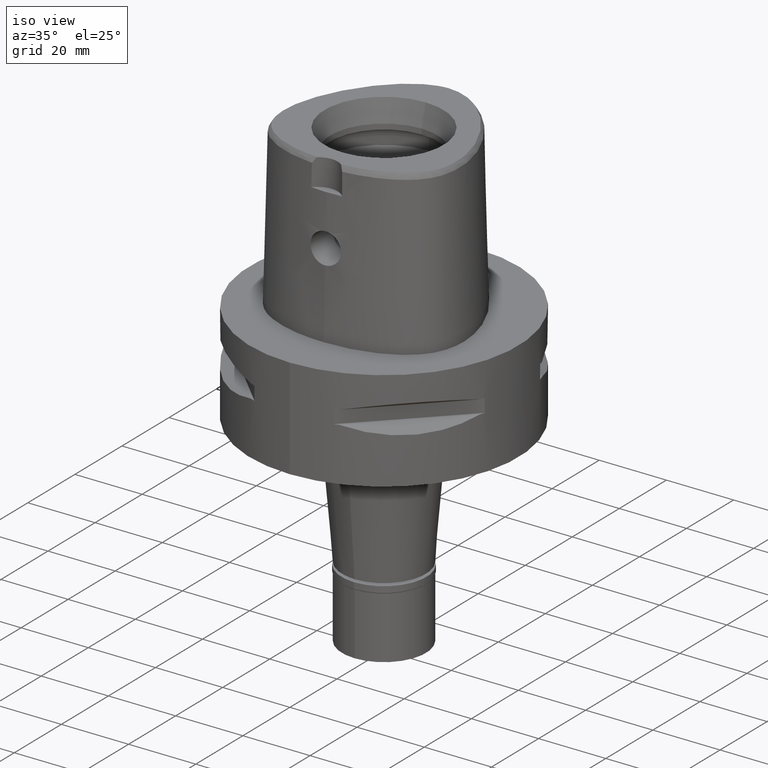
[diagram: clean part render]
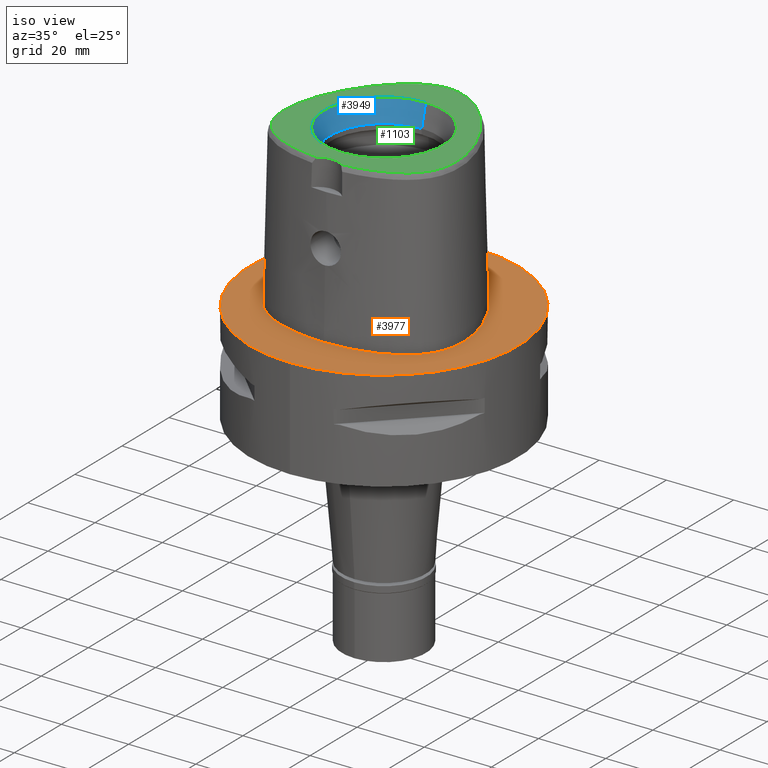
[diagram: same view with three faces highlighted in distinct colors, each labeled with its STEP entity id]
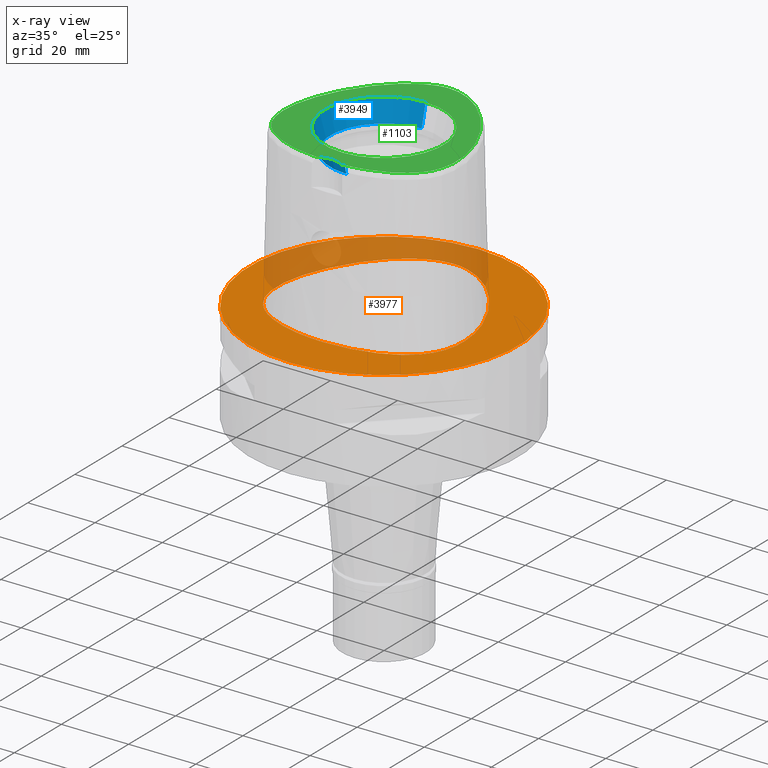
[diagram: x-ray of the same camera — body ghosted, the three highlighted faces saturated]
A machine part, iso view with three faces highlighted in distinct colors.
The next image is the same camera in x-ray (body ghosted, the three faces saturated) — at least one of them is partly hidden behind the body in this view.
Their STEP definitions:

[orange] entity #3977 — the highlighted planar face has unit normal (0, 0, -1).
#49 = CARTESIAN_POINT ( 'NONE',  ( -26.34912733315863420, -13.39455076413058698, 1.701754668876221538E-06 ) ) ;
#179 = CARTESIAN_POINT ( 'NONE',  ( 0.0000000000000000000, 1.275959500031999927E-14, 0.0000000000000000000 ) ) ;
#265 = AXIS2_PLACEMENT_3D ( 'NONE', #2224, #3396, #901 ) ;
#288 = AXIS2_PLACEMENT_3D ( 'NONE', #179, #3020, #2603 ) ;
#323 = CARTESIAN_POINT ( 'NONE',  ( 27.68378750939452360, -8.751933590071784508, 1.165658668005574439E-06 ) ) ;
#376 = CARTESIAN_POINT ( 'NONE',  ( 25.63812387330620268, -14.80217771977588015, 1.165658668005574439E-06 ) ) ;
#377 = AXIS2_PLACEMENT_3D ( 'NONE', #1760, #474, #1663 ) ;
#396 = CARTESIAN_POINT ( 'NONE',  ( 3.149084868216509125, 29.34015622135638068, 1.165658668005574439E-06 ) ) ;
#474 = DIRECTION ( 'NONE',  ( 0.0000000000000000000, 0.0000000000000000000, -1.000000000000000000 ) ) ;
#651 = EDGE_CURVE ( 'NONE', #4049, #3646, #3774, .T. ) ;
#744 = CARTESIAN_POINT ( 'NONE',  ( 24.77458491141283758, -16.12173826395166998, 1.165658668005574439E-06 ) ) ;
#800 = CARTESIAN_POINT ( 'NONE',  ( -22.33885462068464633, 12.89734372864185730, 1.701754668876221538E-06 ) ) ;
#819 = CARTESIAN_POINT ( 'NONE',  ( 4.148697022416999716E-11, 29.57499999998999840, 1.067294401005999885E-13 ) ) ;
#822 = CARTESIAN_POINT ( 'NONE',  ( 4.148697022416999716E-11, 29.57499999998999840, 1.067294401005999885E-13 ) ) ;
#901 = DIRECTION ( 'NONE',  ( 0.0000000000000000000, -1.000000000000000000, 0.0000000000000000000 ) ) ;
#1166 = CARTESIAN_POINT ( 'NONE',  ( -11.74025984363835562, -24.13566402136991584, 1.701754668876221538E-06 ) ) ;
#1188 = CARTESIAN_POINT ( 'NONE',  ( 6.262496933459375192, 28.35083005113985521, 1.165658668005574439E-06 ) ) ;
#1217 = CARTESIAN_POINT ( 'NONE',  ( -1.049694954984246476, 29.57499995746253774, 1.701754668876221538E-06 ) ) ;
#1238 = CARTESIAN_POINT ( 'NONE',  ( -27.68378749603251876, -8.751933588380621742, 1.701754668876221538E-06 ) ) ;
#1261 = CARTESIAN_POINT ( 'NONE',  ( -15.29776364736192207, -22.96525386653354062, 1.701754668876221538E-06 ) ) ;
#1389 = CARTESIAN_POINT ( 'NONE',  ( -1.821165774657999902E-11, -25.57499999999999929, 1.131317262092999931E-13 ) ) ;
#1426 = B_SPLINE_CURVE_WITH_KNOTS ( 'NONE', 3,
 ( #822, #1217, #4024, #2857, #4828, #4368, #5127, #800, #2354, #2001, #1660, #1586, #1238, #4784, #49, #3253, #4806, #2055, #2379, #3591, #1261, #1166, #1954, #4438, #3182 ),
 .UNSPECIFIED., .F., .F.,
 ( 4, 1, 1, 1, 1, 1, 1, 1, 1, 1, 1, 1, 1, 1, 1, 1, 1, 1, 1, 1, 1, 1, 4 ),
 ( 0.0000000000000000000, 0.04166666666717999679, 0.08333333333381000296, 0.1250000000004000134, 0.1666666666671000052, 0.2500000000002999823, 0.3333333333335999904, 0.4166666666668999985, 0.4583333333335000148, 0.5000000000001000311, 0.5416666666667999674, 0.5833333333333999837, 0.6250000000000000000, 0.6458333333333000637, 0.6666666666667000474, 0.6875000000000000000, 0.7083333333333000637, 0.7499999999999000799, 0.7916666666666000163, 0.8333333333332000326, 0.8749999999998000488, 0.9166666666664999852, 1.000000000000000000 ),
 .UNSPECIFIED. ) ;
#1472 = EDGE_CURVE ( 'NONE', #3037, #1984, #1426, .T. ) ;
#1563 = CARTESIAN_POINT ( 'NONE',  ( 22.33885463233493951, 12.89734373536445844, 1.165658668005574439E-06 ) ) ;
#1584 = CARTESIAN_POINT ( 'NONE',  ( 27.53737508972407255, -1.765625004409581589, 1.165658668005574439E-06 ) ) ;
#1586 = CARTESIAN_POINT ( 'NONE',  ( -27.85475985478740668, -5.337968751070182094, 1.701754668876221538E-06 ) ) ;
#1637 = ORIENTED_EDGE ( 'NONE', *, *, #1472, .F. ) ;
#1660 = CARTESIAN_POINT ( 'NONE',  ( -27.53737507645010396, -1.765625006437313127, 1.701754668876221538E-06 ) ) ;
#1663 = DIRECTION ( 'NONE',  ( 0.0000000000000000000, -1.000000000000000000, 0.0000000000000000000 ) ) ;
#1760 = CARTESIAN_POINT ( 'NONE',  ( 0.0000000000000000000, 1.224646799146999965E-14, 0.0000000000000000000 ) ) ;
#1923 = CARTESIAN_POINT ( 'NONE',  ( 6.691850459819625563, -25.24546872104254192, 1.165658668005574439E-06 ) ) ;
#1954 = CARTESIAN_POINT ( 'NONE',  ( -6.691850457977461808, -25.24546870772859819, 1.701754668876221538E-06 ) ) ;
#1978 = CARTESIAN_POINT ( 'NONE',  ( 26.34912734546020019, -13.39455076952570600, 1.165658668005574439E-06 ) ) ;
#1984 = VERTEX_POINT ( 'NONE', #1389 ) ;
#2001 = CARTESIAN_POINT ( 'NONE',  ( -26.77222810152197852, 1.900468739064591794, 1.701754668876221538E-06 ) ) ;
#2055 = CARTESIAN_POINT ( 'NONE',  ( -23.43253025682038171, -17.76420407183780625, 1.701754668876221538E-06 ) ) ;
#2080 = PLANE ( 'NONE',  #377 ) ;
#2224 = CARTESIAN_POINT ( 'NONE',  ( 0.0000000000000000000, 1.275959500031999927E-14, 0.0000000000000000000 ) ) ;
#2352 = CARTESIAN_POINT ( 'NONE',  ( 17.75297948908530898, 19.52218748138929172, 1.165658668005574439E-06 ) ) ;
#2354 = CARTESIAN_POINT ( 'NONE',  ( -25.20914246033307649, 6.827421858926171261, 1.701754668876221538E-06 ) ) ;
#2379 = CARTESIAN_POINT ( 'NONE',  ( -21.42129056778538043, -19.59889645033743122, 1.701754668876221538E-06 ) ) ;
#2402 = CARTESIAN_POINT ( 'NONE',  ( 25.20914247278295761, 6.827421863989363793, 1.165658668005574439E-06 ) ) ;
#2423 = CARTESIAN_POINT ( 'NONE',  ( 1.049694955991578693, 29.57499997086068433, 1.165658668005574439E-06 ) ) ;
#2603 = DIRECTION ( 'NONE',  ( 0.0000000000000000000, 1.000000000000000000, 0.0000000000000000000 ) ) ;
#2669 = B_SPLINE_CURVE_WITH_KNOTS ( 'NONE', 3,
 ( #3952, #2710, #1923, #2739, #4708, #3929, #3156, #4290, #744, #376, #1978, #3569, #323, #5145, #1584, #5123, #2402, #1563, #2352, #3995, #3206, #1188, #396, #2423, #819 ),
 .UNSPECIFIED., .F., .F.,
 ( 4, 1, 1, 1, 1, 1, 1, 1, 1, 1, 1, 1, 1, 1, 1, 1, 1, 1, 1, 1, 1, 1, 4 ),
 ( 0.0000000000000000000, 0.08333333333347001104, 0.1250000000001000033, 0.1666666666668000230, 0.2083333333334000115, 0.2500000000000000000, 0.2916666666666999919, 0.3125000000000000000, 0.3333333333333000081, 0.3541666666666999919, 0.3750000000000000000, 0.4166666666666000163, 0.4583333333332000326, 0.4999999999998999689, 0.5416666666666000163, 0.5833333333331000015, 0.6666666666664999852, 0.7499999999997000177, 0.8333333333329999704, 0.8749999999995999866, 0.9166666666663000340, 0.9583333333329000503, 1.000000000000000000 ),
 .UNSPECIFIED. ) ;
#2710 = CARTESIAN_POINT ( 'NONE',  ( 2.676740183930187200, -25.57499997085983523, 1.165658668005574439E-06 ) ) ;
#2739 = CARTESIAN_POINT ( 'NONE',  ( 11.74025984713455095, -24.13566403432510299, 1.165658668005574439E-06 ) ) ;
#2857 = CARTESIAN_POINT ( 'NONE',  ( -6.262496928246712891, 28.35083003872227891, 1.701754668876221538E-06 ) ) ;
#2860 = FACE_OUTER_BOUND ( 'NONE', #4467, .T. ) ;
#3020 = DIRECTION ( 'NONE',  ( 0.0000000000000000000, 0.0000000000000000000, -1.000000000000000000 ) ) ;
#3037 = VERTEX_POINT ( 'NONE', #3463 ) ;
#3156 = CARTESIAN_POINT ( 'NONE',  ( 21.42129057593177421, -19.59889646106317329, 1.165658668005574439E-06 ) ) ;
#3158 = EDGE_LOOP ( 'NONE', ( #1637, #4097 ) ) ;
#3182 = CARTESIAN_POINT ( 'NONE',  ( -1.821165774657999902E-11, -25.57499999999999929, 1.131317262092999931E-13 ) ) ;
#3206 = CARTESIAN_POINT ( 'NONE',  ( 9.304563391366016845, 26.79191403755841705, 1.165658668005574439E-06 ) ) ;
#3253 = CARTESIAN_POINT ( 'NONE',  ( -25.63812386168063640, -14.80217771306819863, 1.701754668876221538E-06 ) ) ;
#3396 = DIRECTION ( 'NONE',  ( 0.0000000000000000000, 0.0000000000000000000, -1.000000000000000000 ) ) ;
#3463 = CARTESIAN_POINT ( 'NONE',  ( 4.148697022416999716E-11, 29.57499999998999840, 1.067294401005999885E-13 ) ) ;
#3569 = CARTESIAN_POINT ( 'NONE',  ( 27.10051714556994185, -11.41106444511870421, 1.165658668005574439E-06 ) ) ;
#3591 = CARTESIAN_POINT ( 'NONE',  ( -18.55019647042514563, -21.45394527502291027, 1.701754668876221538E-06 ) ) ;
#3646 = VERTEX_POINT ( 'NONE', #4760 ) ;
#3774 = CIRCLE ( 'NONE', #265, 40.00000000000000000 ) ;
#3870 = ORIENTED_EDGE ( 'NONE', *, *, #651, .F. ) ;
#3891 = ORIENTED_EDGE ( 'NONE', *, *, #4156, .F. ) ;
#3929 = CARTESIAN_POINT ( 'NONE',  ( 18.55019647685577056, -21.45394528682550828, 1.165658668005574439E-06 ) ) ;
#3952 = CARTESIAN_POINT ( 'NONE',  ( -1.821165774657999902E-11, -25.57499999999999929, 1.131317262092999931E-13 ) ) ;
#3977 = ADVANCED_FACE ( 'NONE', ( #2860, #4442 ), #2080, .F. ) ;
#3995 = CARTESIAN_POINT ( 'NONE',  ( 13.21796078620111459, 24.04386716541122127, 1.165658668005574439E-06 ) ) ;
#4024 = CARTESIAN_POINT ( 'NONE',  ( -3.149084865322356652, 29.34015620817619308, 1.701754668876221538E-06 ) ) ;
#4049 = VERTEX_POINT ( 'NONE', #4466 ) ;
#4097 = ORIENTED_EDGE ( 'NONE', *, *, #4385, .F. ) ;
#4156 = EDGE_CURVE ( 'NONE', #3646, #4049, #4710, .T. ) ;
#4290 = CARTESIAN_POINT ( 'NONE',  ( 23.43253026647482073, -17.76420408120461047, 1.165658668005574439E-06 ) ) ;
#4368 = CARTESIAN_POINT ( 'NONE',  ( -13.21796077734287955, 24.04386715526105789, 1.701754668876221538E-06 ) ) ;
#4385 = EDGE_CURVE ( 'NONE', #1984, #3037, #2669, .T. ) ;
#4438 = CARTESIAN_POINT ( 'NONE',  ( -2.676740183213321078, -25.57499995745941845, 1.701754668876221538E-06 ) ) ;
#4442 = FACE_BOUND ( 'NONE', #3158, .T. ) ;
#4466 = CARTESIAN_POINT ( 'NONE',  ( 0.0000000000000000000, -40.00000000000000000, 0.0000000000000000000 ) ) ;
#4467 = EDGE_LOOP ( 'NONE', ( #3891, #3870 ) ) ;
#4708 = CARTESIAN_POINT ( 'NONE',  ( 15.29776365224693890, -22.96525387904253890, 1.165658668005574439E-06 ) ) ;
#4710 = CIRCLE ( 'NONE', #288, 40.00000000000000000 ) ;
#4760 = CARTESIAN_POINT ( 'NONE',  ( 0.0000000000000000000, 40.00000000000000000, 0.0000000000000000000 ) ) ;
#4784 = CARTESIAN_POINT ( 'NONE',  ( -27.10051713263586848, -11.41106444143270338, 1.701754668876221538E-06 ) ) ;
#4806 = CARTESIAN_POINT ( 'NONE',  ( -24.77458490059915519, -16.12173825601508170, 1.701754668876221538E-06 ) ) ;
#4828 = CARTESIAN_POINT ( 'NONE',  ( -9.304563384354768374, 26.79191402609218287, 1.701754668876221538E-06 ) ) ;
#5123 = CARTESIAN_POINT ( 'NONE',  ( 26.77222811450192097, 1.900468742509929365, 1.165658668005574439E-06 ) ) ;
#5127 = CARTESIAN_POINT ( 'NONE',  ( -17.75297947868810766, 19.52218747283760436, 1.701754668876221538E-06 ) ) ;
#5145 = CARTESIAN_POINT ( 'NONE',  ( 27.85475986822256900, -5.337968750732916767, 1.165658668005574439E-06 ) ) ;

[blue] entity #3949 — the highlighted conical surface has half-angle 15 deg.
#100 = CARTESIAN_POINT ( 'NONE',  ( 0.0000000000000000000, 17.71487483155999954, 48.00000000000000000 ) ) ;
#211 = EDGE_LOOP ( 'NONE', ( #940, #3659, #450, #2231 ) ) ;
#352 = DIRECTION ( 'NONE',  ( 0.0000000000000000000, 1.000000000000000000, 0.0000000000000000000 ) ) ;
#449 = AXIS2_PLACEMENT_3D ( 'NONE', #2840, #4516, #947 ) ;
#450 = ORIENTED_EDGE ( 'NONE', *, *, #1044, .T. ) ;
#940 = ORIENTED_EDGE ( 'NONE', *, *, #2509, .F. ) ;
#947 = DIRECTION ( 'NONE',  ( 0.0000000000000000000, 1.000000000000000000, 0.0000000000000000000 ) ) ;
#1044 = EDGE_CURVE ( 'NONE', #1933, #3937, #2250, .T. ) ;
#1190 = CARTESIAN_POINT ( 'NONE',  ( 0.0000000000000000000, 0.0000000000000000000, 41.60000000000000142 ) ) ;
#1337 = CARTESIAN_POINT ( 'NONE',  ( 0.0000000000000000000, -16.00000000000000000, 41.60000000000000142 ) ) ;
#1465 = CONICAL_SURFACE ( 'NONE', #449, 16.85743741578000154, 0.2617993877991000029 ) ;
#1527 = EDGE_CURVE ( 'NONE', #1933, #2637, #3034, .T. ) ;
#1539 = VECTOR ( 'NONE', #3478, 1000.000000000000000 ) ;
#1552 = AXIS2_PLACEMENT_3D ( 'NONE', #2382, #3525, #352 ) ;
#1626 = VECTOR ( 'NONE', #4486, 1000.000000000000000 ) ;
#1661 = LINE ( 'NONE', #2480, #1626 ) ;
#1825 = CARTESIAN_POINT ( 'NONE',  ( 0.0000000000000000000, -17.71487483155999954, 48.00000000000000000 ) ) ;
#1933 = VERTEX_POINT ( 'NONE', #4591 ) ;
#2231 = ORIENTED_EDGE ( 'NONE', *, *, #3651, .T. ) ;
#2250 = LINE ( 'NONE', #3892, #1539 ) ;
#2382 = CARTESIAN_POINT ( 'NONE',  ( 0.0000000000000000000, 0.0000000000000000000, 48.00000000000000000 ) ) ;
#2480 = CARTESIAN_POINT ( 'NONE',  ( 0.0000000000000000000, -16.00000000000000000, 41.60000000000000142 ) ) ;
#2509 = EDGE_CURVE ( 'NONE', #2637, #3335, #1661, .T. ) ;
#2637 = VERTEX_POINT ( 'NONE', #1337 ) ;
#2788 = DIRECTION ( 'NONE',  ( 0.0000000000000000000, 1.000000000000000000, 0.0000000000000000000 ) ) ;
#2840 = CARTESIAN_POINT ( 'NONE',  ( 0.0000000000000000000, 0.0000000000000000000, 44.79999999999999716 ) ) ;
#2937 = FACE_OUTER_BOUND ( 'NONE', #211, .T. ) ;
#3034 = CIRCLE ( 'NONE', #4602, 16.00000000000000000 ) ;
#3335 = VERTEX_POINT ( 'NONE', #1825 ) ;
#3478 = DIRECTION ( 'NONE',  ( 0.0000000000000000000, 0.2588190451025869088, 0.9659258262890505486 ) ) ;
#3525 = DIRECTION ( 'NONE',  ( 0.0000000000000000000, 0.0000000000000000000, 1.000000000000000000 ) ) ;
#3571 = DIRECTION ( 'NONE',  ( 0.0000000000000000000, 0.0000000000000000000, 1.000000000000000000 ) ) ;
#3651 = EDGE_CURVE ( 'NONE', #3937, #3335, #3789, .T. ) ;
#3659 = ORIENTED_EDGE ( 'NONE', *, *, #1527, .F. ) ;
#3789 = CIRCLE ( 'NONE', #1552, 17.71487483155999954 ) ;
#3892 = CARTESIAN_POINT ( 'NONE',  ( 0.0000000000000000000, 16.00000000000000000, 41.60000000000000142 ) ) ;
#3937 = VERTEX_POINT ( 'NONE', #100 ) ;
#3949 = ADVANCED_FACE ( 'NONE', ( #2937 ), #1465, .F. ) ;
#4486 = DIRECTION ( 'NONE',  ( 0.0000000000000000000, -0.2588190451025869088, 0.9659258262890505486 ) ) ;
#4516 = DIRECTION ( 'NONE',  ( 0.0000000000000000000, 0.0000000000000000000, 1.000000000000000000 ) ) ;
#4591 = CARTESIAN_POINT ( 'NONE',  ( 0.0000000000000000000, 16.00000000000000000, 41.60000000000000142 ) ) ;
#4602 = AXIS2_PLACEMENT_3D ( 'NONE', #1190, #3571, #2788 ) ;

[green] entity #1103 — the highlighted planar face has unit normal (0, 0, 1).
#6 = CARTESIAN_POINT ( 'NONE',  ( -21.17991838302293317, -17.09989881138198697, 47.99999999999720046 ) ) ;
#10 = CARTESIAN_POINT ( 'NONE',  ( 16.58774972841499107, 17.44522137221790459, 48.00000000001266898 ) ) ;
#17 = AXIS2_PLACEMENT_3D ( 'NONE', #2148, #144, #4980 ) ;
#34 = CARTESIAN_POINT ( 'NONE',  ( -8.052265342579660867, 25.13651235630354819, 47.99999999999929656 ) ) ;
#38 = CARTESIAN_POINT ( 'NONE',  ( 18.06021793802549524, -19.35923481219389330, 47.99999999999899103 ) ) ;
#59 = CARTESIAN_POINT ( 'NONE',  ( 21.18145661121161538, -17.09850743469760204, 48.00000000000048317 ) ) ;
#78 = CARTESIAN_POINT ( 'NONE',  ( -2.895995683504697826, 27.25632069045617101, 47.99999999999904077 ) ) ;
#81 = CARTESIAN_POINT ( 'NONE',  ( 15.47311546589589426, 18.77848662925027412, 48.00000000000511591 ) ) ;
#95 = ORIENTED_EDGE ( 'NONE', *, *, #3651, .F. ) ;
#100 = CARTESIAN_POINT ( 'NONE',  ( 0.0000000000000000000, 17.71487483155999954, 48.00000000000000000 ) ) ;
#144 = DIRECTION ( 'NONE',  ( 0.0000000000000000000, 0.0000000000000000000, 1.000000000000000000 ) ) ;
#310 = CARTESIAN_POINT ( 'NONE',  ( -25.33661149944552804, -10.07113708571539057, 48.00000000000500222 ) ) ;
#335 = CARTESIAN_POINT ( 'NONE',  ( -12.15213727002930888, -21.88854758767285702, 48.00000000000326139 ) ) ;
#352 = DIRECTION ( 'NONE',  ( 0.0000000000000000000, 1.000000000000000000, 0.0000000000000000000 ) ) ;
#359 = CARTESIAN_POINT ( 'NONE',  ( -24.78798701905643398, 1.406367702425763477, 47.99999999999251088 ) ) ;
#387 = CARTESIAN_POINT ( 'NONE',  ( -20.74831938584492974, 11.24670202905030081, 47.99999999999530331 ) ) ;
#389 = CARTESIAN_POINT ( 'NONE',  ( 25.33687583871812876, -10.06999584063397357, 48.00000000001284661 ) ) ;
#407 = CARTESIAN_POINT ( 'NONE',  ( -10.66374418708116423, -22.30593187528414845, 47.99999999999839417 ) ) ;
#409 = CARTESIAN_POINT ( 'NONE',  ( 3.695072017992968139, -23.43648746218571688, 48.00000000000362377 ) ) ;
#434 = CARTESIAN_POINT ( 'NONE',  ( 24.62320007857052317, -12.31148373401306628, 48.00000000000532197 ) ) ;
#454 = CARTESIAN_POINT ( 'NONE',  ( -3.678923649487368497, 27.05630543830724832, 47.99999999999607070 ) ) ;
#458 = CARTESIAN_POINT ( 'NONE',  ( 15.99678577414673164, -20.43406366493044857, 48.00000000000532197 ) ) ;
#482 = CARTESIAN_POINT ( 'NONE',  ( 25.74155027847655930, -7.352132003089502099, 48.00000000000483169 ) ) ;
#535 = CARTESIAN_POINT ( 'NONE',  ( -13.24182048140689183, 21.12501160990292348, 47.99999999999430855 ) ) ;
#583 = VERTEX_POINT ( 'NONE', #2700 ) ;
#590 = EDGE_CURVE ( 'NONE', #4112, #3710, #2988, .T. ) ;
#703 = DIRECTION ( 'NONE',  ( 1.000000000000000000, 0.0000000000000000000, 0.0000000000000000000 ) ) ;
#734 = CARTESIAN_POINT ( 'NONE',  ( -22.32985285487743710, -15.94550431090900311, 48.00000000000074607 ) ) ;
#750 = EDGE_LOOP ( 'NONE', ( #3650, #95 ) ) ;
#755 = CARTESIAN_POINT ( 'NONE',  ( -20.51077223930196070, -17.67263102127693486, 47.99999999999774047 ) ) ;
#760 = CARTESIAN_POINT ( 'NONE',  ( 2.140583849880719924, 27.40603513869571017, 48.00000000000454037 ) ) ;
#780 = CARTESIAN_POINT ( 'NONE',  ( -21.64189922317201109, 9.570126786845996492, 47.99999999999783995 ) ) ;
#783 = CARTESIAN_POINT ( 'NONE',  ( 13.24267791556095020, 21.12418368643482935, 48.00000000000473932 ) ) ;
#807 = CARTESIAN_POINT ( 'NONE',  ( -18.95547945645392929, -18.80500687501949741, 48.00000000000075318 ) ) ;
#809 = CARTESIAN_POINT ( 'NONE',  ( 18.76051936065362824, 14.48366014233153010, 48.00000000000915890 ) ) ;
#832 = CARTESIAN_POINT ( 'NONE',  ( 20.51253914625297270, -17.67119446945687145, 47.99999999999879918 ) ) ;
#853 = CARTESIAN_POINT ( 'NONE',  ( -17.68810259327747048, 16.01016819644824096, 48.00000000000191847 ) ) ;
#859 = CARTESIAN_POINT ( 'NONE',  ( 3.652533226355999751, -23.43985283522000174, 48.00000000000000000 ) ) ;
#898 = CARTESIAN_POINT ( 'NONE',  ( -4.489954052494129932, 26.80204639255481069, 47.99999999999807443 ) ) ;
#1096 = CARTESIAN_POINT ( 'NONE',  ( -7.390055773641464043, -22.99586658607992717, 47.99999999999857181 ) ) ;
#1103 = ADVANCED_FACE ( 'NONE', ( #3143, #3528 ), #3914, .T. ) ;
#1154 = CARTESIAN_POINT ( 'NONE',  ( -5.621443921966288393, -23.25305008129798878, 48.00000000000213873 ) ) ;
#1173 = CARTESIAN_POINT ( 'NONE',  ( -22.45665628223596855, 7.877471279648816882, 47.99999999999306510 ) ) ;
#1199 = CARTESIAN_POINT ( 'NONE',  ( -25.51017841222378024, -9.223923978199174201, 47.99999999999528200 ) ) ;
#1202 = CARTESIAN_POINT ( 'NONE',  ( 22.82172265264296840, -15.36274108902429525, 48.00000000000996891 ) ) ;
#1227 = CARTESIAN_POINT ( 'NONE',  ( 23.18188527997950032, 6.195157684106435525, 48.00000000000257216 ) ) ;
#1251 = CARTESIAN_POINT ( 'NONE',  ( 5.331982176208748925, 26.48833275828607725, 48.00000000000887468 ) ) ;
#1274 = CARTESIAN_POINT ( 'NONE',  ( 25.51037851176770488, -9.222789616917914657, 48.00000000001070077 ) ) ;
#1301 = CARTESIAN_POINT ( 'NONE',  ( 8.053467330374051159, 25.13580020532213410, 48.00000000000165556 ) ) ;
#1319 = CARTESIAN_POINT ( 'NONE',  ( -9.027913645277157784, 24.52726119145695449, 47.99999999999594991 ) ) ;
#1340 = CARTESIAN_POINT ( 'NONE',  ( -2.553072305009000136E-11, 27.58331912251000162, 48.00000000000000000 ) ) ;
#1448 = ORIENTED_EDGE ( 'NONE', *, *, #2200, .F. ) ;
#1519 = CARTESIAN_POINT ( 'NONE',  ( -19.77143225161843887, -18.24138896764311824, 48.00000000000035527 ) ) ;
#1552 = AXIS2_PLACEMENT_3D ( 'NONE', #2382, #3525, #352 ) ;
#1576 = CARTESIAN_POINT ( 'NONE',  ( 0.6937438505403740185, 27.57019898700858818, 48.00000000000216716 ) ) ;
#1595 = CARTESIAN_POINT ( 'NONE',  ( -25.12916461511596466, -10.86541650940239201, 47.99999999999861444 ) ) ;
#1598 = CARTESIAN_POINT ( 'NONE',  ( 10.66892483387040613, -22.30459704282489497, 48.00000000001320899 ) ) ;
#1618 = CARTESIAN_POINT ( 'NONE',  ( -24.32740975879540102, -12.97324844465714300, 47.99999999999428013 ) ) ;
#1623 = CARTESIAN_POINT ( 'NONE',  ( 25.60516200877592752, -2.794192459352862645, 48.00000000000223821 ) ) ;
#1646 = CARTESIAN_POINT ( 'NONE',  ( -2.139154069217646725, 27.40627708267263074, 48.00000000000002132 ) ) ;
#1650 = CARTESIAN_POINT ( 'NONE',  ( 17.07549476912042152, -19.90378693825529766, 48.00000000000360245 ) ) ;
#1670 = CARTESIAN_POINT ( 'NONE',  ( 14.81975810291339535, -20.94516920634621826, 48.00000000000746780 ) ) ;
#1689 = CARTESIAN_POINT ( 'NONE',  ( -1.406513445700593001, 27.50987728443755032, 48.00000000000135714 ) ) ;
#1694 = CARTESIAN_POINT ( 'NONE',  ( 25.79052179444744652, -6.319355031380182730, 48.00000000000711964 ) ) ;
#1825 = CARTESIAN_POINT ( 'NONE',  ( 0.0000000000000000000, -17.71487483155999954, 48.00000000000000000 ) ) ;
#1842 = EDGE_CURVE ( 'NONE', #3710, #583, #3693, .T. ) ;
#1864 = B_SPLINE_CURVE_WITH_KNOTS ( 'NONE', 3,
 ( #3602, #4723, #3893, #1154, #1096, #4326, #407, #335, #5156, #3559, #2413, #2010, #3580, #807, #1519, #755, #6, #3116, #734, #3916, #5110, #1936, #4693, #1618, #3217, #4275, #1595, #310, #1199, #3530, #2751, #2797, #3168, #1910, #2364, #3939, #3507, #359, #5082, #4352, #1964, #1173, #780, #387, #1988, #4425, #853, #3648, #3242, #4882, #535, #2531, #4449, #2823, #1319, #34, #4859, #4814, #2865, #898, #454, #78, #1646, #1689, #2486, #3696, #2460 ),
 .UNSPECIFIED., .F., .F.,
 ( 4, 1, 1, 1, 1, 1, 1, 1, 1, 1, 1, 1, 1, 1, 1, 1, 1, 1, 1, 1, 1, 1, 1, 1, 1, 1, 1, 1, 1, 1, 1, 1, 1, 1, 1, 1, 1, 1, 1, 1, 1, 1, 1, 1, 1, 1, 1, 1, 1, 1, 1, 1, 1, 1, 1, 1, 1, 1, 1, 1, 1, 1, 1, 1, 4 ),
 ( 0.0000000000000000000, 0.001025211071800091744, 0.01688195375320000746, 0.03273869643469995427, 0.04859543911610009204, 0.06445218179750000775, 0.08030892447889992347, 0.09616566716030006123, 0.1120224098416999770, 0.1278791525231999238, 0.1437358952045000304, 0.1595926378859000572, 0.1754493805672999729, 0.1913061232486999996, 0.2071628659301000264, 0.2230196086114999421, 0.2388763512929999999, 0.2547330939744000267, 0.2705898366558000534, 0.2864465793371999691, 0.3023033220184999648, 0.3181600646999001025, 0.3340168073814000493, 0.3498735500627999651, 0.3657302927441999918, 0.3815870354256000185, 0.3974437781070000453, 0.4133005207884000720, 0.4291572634697999877, 0.4450140061513000456, 0.4608707488326000412, 0.4767274915139999569, 0.4925842341953999837, 0.5084409768768000104, 0.5242977195582000371, 0.5401544622396999840, 0.5560112049211000107, 0.5718679476025000374, 0.5877246902838999532, 0.6035814329652000598, 0.6194381756466000866, 0.6352949183280000023, 0.6511516610095000601, 0.6670084036908999758, 0.6828651463723000026, 0.6987218890537000293, 0.7145786317350999450, 0.7304353744164999718, 0.7462921170980000296, 0.7621488597793000253, 0.7780056024607000520, 0.7938623451421000787, 0.8097190878234999944, 0.8255758305049000212, 0.8414325731862999369, 0.8572893158677999947, 0.8731460585492000215, 0.8890028012306000482, 0.9048595439119599959, 0.9207162865933600226, 0.9365730292747700414, 0.9524297719561699571, 0.9682865146375799759, 0.9841432573189800026, 1.000000000000000000 ),
 .UNSPECIFIED. ) ;
#1910 = CARTESIAN_POINT ( 'NONE',  ( -25.72853642076808711, -4.045150056829593055, 47.99999999999721467 ) ) ;
#1936 = CARTESIAN_POINT ( 'NONE',  ( -23.65469623605566341, -14.19111717468784839, 47.99999999999668177 ) ) ;
#1964 = CARTESIAN_POINT ( 'NONE',  ( -23.18199738827443213, 6.194888181193975107, 47.99999999999150901 ) ) ;
#1988 = CARTESIAN_POINT ( 'NONE',  ( -19.78446217835440635, 12.89029827906901815, 47.99999999999655387 ) ) ;
#1990 = CARTESIAN_POINT ( 'NONE',  ( 11.07918744941202505, 23.03051546725432175, 48.00000000000645173 ) ) ;
#2010 = CARTESIAN_POINT ( 'NONE',  ( -17.07251346402788528, -19.90534499102499311, 47.99999999999783995 ) ) ;
#2041 = CARTESIAN_POINT ( 'NONE',  ( 19.77345709183311939, -18.23990985539677467, 48.00000000000171951 ) ) ;
#2066 = CARTESIAN_POINT ( 'NONE',  ( 23.81116373424417887, 4.548397580874523172, 48.00000000000844125 ) ) ;
#2087 = CARTESIAN_POINT ( 'NONE',  ( 12.15683615294367215, -21.88711351950601980, 48.00000000000370193 ) ) ;
#2148 = CARTESIAN_POINT ( 'NONE',  ( 0.0000000000000000000, -28.19999999999999929, 48.00000000000000000 ) ) ;
#2158 = EDGE_CURVE ( 'NONE', #3335, #3937, #3370, .T. ) ;
#2200 = EDGE_CURVE ( 'NONE', #583, #4112, #1864, .T. ) ;
#2364 = CARTESIAN_POINT ( 'NONE',  ( -25.60527911803040624, -2.795135548250136992, 47.99999999999713651 ) ) ;
#2366 = CARTESIAN_POINT ( 'NONE',  ( 2.897393261679704679, 27.25600202852703546, 48.00000000000159872 ) ) ;
#2382 = CARTESIAN_POINT ( 'NONE',  ( 0.0000000000000000000, 0.0000000000000000000, 48.00000000000000000 ) ) ;
#2392 = CARTESIAN_POINT ( 'NONE',  ( 22.45659887780410813, 7.877591736060505667, 48.00000000000268585 ) ) ;
#2413 = CARTESIAN_POINT ( 'NONE',  ( -15.99341638177805613, -20.43562447749035371, 47.99999999999371880 ) ) ;
#2415 = CARTESIAN_POINT ( 'NONE',  ( 25.72845965679678315, -4.044145215521722569, 48.00000000000938627 ) ) ;
#2439 = CARTESIAN_POINT ( 'NONE',  ( 24.34579675531306364, 2.948329282943804142, 48.00000000000919442 ) ) ;
#2460 = CARTESIAN_POINT ( 'NONE',  ( -2.553072305009000136E-11, 27.58331912251000162, 48.00000000000000000 ) ) ;
#2464 = CARTESIAN_POINT ( 'NONE',  ( 20.74842146925000108, 11.24651447313522468, 48.00000000000479616 ) ) ;
#2486 = CARTESIAN_POINT ( 'NONE',  ( -0.6921675427514207835, 27.57027402749931255, 47.99999999999933209 ) ) ;
#2489 = CARTESIAN_POINT ( 'NONE',  ( 7.112111422625127410, 25.66156608519618487, 48.00000000000291323 ) ) ;
#2491 = CARTESIAN_POINT ( 'NONE',  ( 0.0000000000000000000, 0.0000000000000000000, 48.00000000000000000 ) ) ;
#2531 = CARTESIAN_POINT ( 'NONE',  ( -12.14717624329537138, 22.13270362300861294, 48.00000000000312639 ) ) ;
#2626 = AXIS2_PLACEMENT_3D ( 'NONE', #2491, #3654, #3703 ) ;
#2696 = CARTESIAN_POINT ( 'NONE',  ( 0.0000000000000000000, 0.0000000000000000000, 48.00000000000000000 ) ) ;
#2700 = CARTESIAN_POINT ( 'NONE',  ( -3.652529789304999941, -23.43985019791999846, 48.00000000000000000 ) ) ;
#2751 = CARTESIAN_POINT ( 'NONE',  ( -25.74147105879389485, -7.353240448490374170, 48.00000000000049027 ) ) ;
#2786 = AXIS2_PLACEMENT_3D ( 'NONE', #2696, #4273, #703 ) ;
#2797 = CARTESIAN_POINT ( 'NONE',  ( -25.79049889474257284, -6.320436011330485826, 47.99999999999965894 ) ) ;
#2801 = CARTESIAN_POINT ( 'NONE',  ( 5.628119991152638946, -23.25222728397107730, 48.00000000000373035 ) ) ;
#2823 = CARTESIAN_POINT ( 'NONE',  ( -10.03780479163933848, 23.82723751531126766, 48.00000000000340350 ) ) ;
#2826 = CARTESIAN_POINT ( 'NONE',  ( 10.03889926274012012, 23.82643791975748471, 48.00000000001170974 ) ) ;
#2850 = CARTESIAN_POINT ( 'NONE',  ( 7.396182376302949280, -22.99483633013595707, 48.00000000000957812 ) ) ;
#2865 = CARTESIAN_POINT ( 'NONE',  ( -5.330667503236526272, 26.48886318459687672, 48.00000000000105160 ) ) ;
#2872 = CARTESIAN_POINT ( 'NONE',  ( 25.12949508357613126, -10.86427360166403666, 48.00000000000375877 ) ) ;
#2899 = CARTESIAN_POINT ( 'NONE',  ( 25.64658655007742283, -8.318518488027473623, 48.00000000000823519 ) ) ;
#2988 = B_SPLINE_CURVE_WITH_KNOTS ( 'NONE', 3,
 ( #3149, #4746, #1576, #4329, #760, #2366, #4040, #3222, #1251, #4817, #2489, #1301, #3290, #2826, #1990, #4404, #783, #4014, #81, #10, #4839, #809, #4061, #2464, #3671, #2392, #1227, #2066, #2439, #4770, #3968, #4865, #1623, #2415, #4379, #1694, #482, #2899, #1274, #389, #2872, #3988, #434, #3652, #4797, #3582, #3604, #1202, #5160, #3194, #59, #832, #2041, #3630, #38, #1650, #458, #1670, #4453, #2087, #1598, #3245, #2850, #2801, #4428, #409, #859 ),
 .UNSPECIFIED., .F., .F.,
 ( 4, 1, 1, 1, 1, 1, 1, 1, 1, 1, 1, 1, 1, 1, 1, 1, 1, 1, 1, 1, 1, 1, 1, 1, 1, 1, 1, 1, 1, 1, 1, 1, 1, 1, 1, 1, 1, 1, 1, 1, 1, 1, 1, 1, 1, 1, 1, 1, 1, 1, 1, 1, 1, 1, 1, 1, 1, 1, 1, 1, 1, 1, 1, 1, 4 ),
 ( 0.0000000000000000000, 0.01585579672639991777, 0.03171159345210006197, 0.04756739017779998413, 0.06342318690360004840, 0.07927898362929997056, 0.09513478035499989272, 0.1109905770807000369, 0.1268463738063999591, 0.1427021705320999923, 0.1585579672578999455, 0.1744137639835999787, 0.1902695607093000119, 0.2061253574349999340, 0.2219811541607000782, 0.2378369508864000004, 0.2536927476120999225, 0.2695485443380000179, 0.2854043410636999401, 0.3012601377893999732, 0.3171159345151000064, 0.3329717312407999286, 0.3488275279665000728, 0.3646833246923000260, 0.3805391214179999482, 0.3963949181436999813, 0.4122507148694000145, 0.4281065115951000477, 0.4439623083207999699, 0.4598181050465000030, 0.4756739017723000673, 0.4915296984979999895, 0.5073854952237000226, 0.5232412919494000558, 0.5390970886750999780, 0.5549528854007999001, 0.5708086821265999644, 0.5866644788522999976, 0.6025202755780000308, 0.6183760723036999529, 0.6342318690293999861, 0.6500876657551999394, 0.6659434624808999725, 0.6817992592067000368, 0.6976550559323999590, 0.7135108526580999921, 0.7293666493838000253, 0.7452224461095000585, 0.7610782428351999807, 0.7769340395610000449, 0.7927898362866999671, 0.8086456330124000003, 0.8245014297380999224, 0.8403572264637999556, 0.8562130231894999888, 0.8720688199152000220, 0.8879246166409999752, 0.9037804133667199924, 0.9196362100924300176, 0.9354920068181400428, 0.9513478035438499569, 0.9672036002695799661, 0.9830593969952899913, 0.9989151937210170029, 1.000000000000000000 ),
 .UNSPECIFIED. ) ;
#3116 = CARTESIAN_POINT ( 'NONE',  ( -21.78463111685598719, -16.52397191851820324, 48.00000000000001421 ) ) ;
#3143 = FACE_OUTER_BOUND ( 'NONE', #4046, .T. ) ;
#3149 = CARTESIAN_POINT ( 'NONE',  ( -2.553072305009000136E-11, 27.58331912251000162, 48.00000000000000000 ) ) ;
#3168 = CARTESIAN_POINT ( 'NONE',  ( -25.78814000082706315, -5.219183132163650818, 47.99999999999604228 ) ) ;
#3194 = CARTESIAN_POINT ( 'NONE',  ( 21.78596494080717960, -16.52262878099660526, 48.00000000000382983 ) ) ;
#3217 = CARTESIAN_POINT ( 'NONE',  ( -24.62272929601939353, -12.31262433038773452, 47.99999999999772626 ) ) ;
#3222 = CARTESIAN_POINT ( 'NONE',  ( 4.491298471527523262, 26.80158405532057486, 48.00000000000877520 ) ) ;
#3242 = CARTESIAN_POINT ( 'NONE',  ( -15.47246034441769069, 18.77924032487157291, 47.99999999999858602 ) ) ;
#3245 = CARTESIAN_POINT ( 'NONE',  ( 9.079666835764486521, -22.67647771863653716, 48.00000000001045919 ) ) ;
#3290 = CARTESIAN_POINT ( 'NONE',  ( 9.029067995420124504, 24.52649931750080015, 48.00000000000949285 ) ) ;
#3335 = VERTEX_POINT ( 'NONE', #1825 ) ;
#3370 = CIRCLE ( 'NONE', #2626, 17.71487483155999954 ) ;
#3507 = CARTESIAN_POINT ( 'NONE',  ( -25.14146662216239747, -0.06794041304838584205, 47.99999999999528910 ) ) ;
#3521 = ORIENTED_EDGE ( 'NONE', *, *, #590, .F. ) ;
#3525 = DIRECTION ( 'NONE',  ( 0.0000000000000000000, 0.0000000000000000000, 1.000000000000000000 ) ) ;
#3528 = FACE_BOUND ( 'NONE', #750, .T. ) ;
#3530 = CARTESIAN_POINT ( 'NONE',  ( -25.64644810599607538, -8.319642749356926714, 48.00000000000139266 ) ) ;
#3559 = CARTESIAN_POINT ( 'NONE',  ( -14.81597509389783340, -20.94671102737027013, 47.99999999999324984 ) ) ;
#3580 = CARTESIAN_POINT ( 'NONE',  ( -18.05758772860164285, -19.36077714811487027, 47.99999999998898659 ) ) ;
#3582 = CARTESIAN_POINT ( 'NONE',  ( 23.65541542675191167, -14.18997106324488655, 48.00000000001210054 ) ) ;
#3602 = CARTESIAN_POINT ( 'NONE',  ( -3.652529789304999941, -23.43985019791999846, 48.00000000000000000 ) ) ;
#3604 = CARTESIAN_POINT ( 'NONE',  ( 23.26225374360110010, -14.77782433121299732, 48.00000000000961364 ) ) ;
#3630 = CARTESIAN_POINT ( 'NONE',  ( 18.95779336836767115, -18.80349047535080942, 48.00000000000234479 ) ) ;
#3648 = CARTESIAN_POINT ( 'NONE',  ( -16.58720414441306445, 17.44590650687637279, 47.99999999999098321 ) ) ;
#3650 = ORIENTED_EDGE ( 'NONE', *, *, #2158, .F. ) ;
#3651 = EDGE_CURVE ( 'NONE', #3937, #3335, #3789, .T. ) ;
#3652 = CARTESIAN_POINT ( 'NONE',  ( 24.32795549673494051, -12.97211154200765293, 48.00000000001014655 ) ) ;
#3654 = DIRECTION ( 'NONE',  ( 0.0000000000000000000, 0.0000000000000000000, 1.000000000000000000 ) ) ;
#3671 = CARTESIAN_POINT ( 'NONE',  ( 21.64191216433471965, 9.570096010441877965, 48.00000000000991918 ) ) ;
#3693 = CIRCLE ( 'NONE', #17, 6.000000000000002665 ) ;
#3696 = CARTESIAN_POINT ( 'NONE',  ( -0.2321695341564914694, 27.58331912251448514, 47.99999999999693046 ) ) ;
#3703 = DIRECTION ( 'NONE',  ( 0.0000000000000000000, -1.000000000000000000, 0.0000000000000000000 ) ) ;
#3710 = VERTEX_POINT ( 'NONE', #4809 ) ;
#3789 = CIRCLE ( 'NONE', #1552, 17.71487483155999954 ) ;
#3893 = CARTESIAN_POINT ( 'NONE',  ( -4.354443962178113026, -23.38344539136067723, 48.00000000000103739 ) ) ;
#3914 = PLANE ( 'NONE',  #2786 ) ;
#3916 = CARTESIAN_POINT ( 'NONE',  ( -22.82072892860395896, -15.36398915678496202, 48.00000000000157030 ) ) ;
#3937 = VERTEX_POINT ( 'NONE', #100 ) ;
#3939 = CARTESIAN_POINT ( 'NONE',  ( -25.41186334295163718, -1.469639852779975220, 48.00000000000047606 ) ) ;
#3968 = CARTESIAN_POINT ( 'NONE',  ( 25.14129527416697485, -0.06715740301636695386, 48.00000000000309797 ) ) ;
#3988 = CARTESIAN_POINT ( 'NONE',  ( 24.89096213678408276, -11.60991207239382028, 48.00000000000508749 ) ) ;
#4014 = CARTESIAN_POINT ( 'NONE',  ( 14.35433142682893326, 20.00604447575093658, 47.99999999999939604 ) ) ;
#4040 = CARTESIAN_POINT ( 'NONE',  ( 3.680297990135986907, 27.05591354499700785, 48.00000000000552092 ) ) ;
#4046 = EDGE_LOOP ( 'NONE', ( #3521, #1448, #4105 ) ) ;
#4061 = CARTESIAN_POINT ( 'NONE',  ( 19.78466709480181862, 12.88995995782109460, 48.00000000000601119 ) ) ;
#4105 = ORIENTED_EDGE ( 'NONE', *, *, #1842, .F. ) ;
#4112 = VERTEX_POINT ( 'NONE', #1340 ) ;
#4273 = DIRECTION ( 'NONE',  ( 0.0000000000000000000, 0.0000000000000000000, 1.000000000000000000 ) ) ;
#4275 = CARTESIAN_POINT ( 'NONE',  ( -24.89056289417363033, -11.61105474084446243, 47.99999999999867839 ) ) ;
#4326 = CARTESIAN_POINT ( 'NONE',  ( -9.073991136863382323, -22.67767904108848853, 47.99999999999597833 ) ) ;
#4329 = CARTESIAN_POINT ( 'NONE',  ( 1.407937999592772549, 27.50970958195115301, 48.00000000000838440 ) ) ;
#4352 = CARTESIAN_POINT ( 'NONE',  ( -23.81131852266081239, 4.547972304025208246, 47.99999999999408828 ) ) ;
#4379 = CARTESIAN_POINT ( 'NONE',  ( 25.78811069501371023, -5.218135357747895497, 48.00000000000768807 ) ) ;
#4404 = CARTESIAN_POINT ( 'NONE',  ( 12.14811716929941454, 22.13187320258928992, 47.99999999999867129 ) ) ;
#4425 = CARTESIAN_POINT ( 'NONE',  ( -18.76020591298041751, 14.48413071376403849, 47.99999999999840838 ) ) ;
#4428 = CARTESIAN_POINT ( 'NONE',  ( 4.358863301033778725, -23.38302754646580794, 48.00000000000661515 ) ) ;
#4449 = CARTESIAN_POINT ( 'NONE',  ( -11.07816725942614866, 23.03133635782594268, 47.99999999999383959 ) ) ;
#4453 = CARTESIAN_POINT ( 'NONE',  ( 13.54089058450733063, -21.43147460488903633, 48.00000000000918732 ) ) ;
#4693 = CARTESIAN_POINT ( 'NONE',  ( -24.00645943641226765, -13.59502449744403307, 48.00000000000103739 ) ) ;
#4723 = CARTESIAN_POINT ( 'NONE',  ( -3.692743038414461054, -23.43666978756741059, 48.00000000000127898 ) ) ;
#4746 = CARTESIAN_POINT ( 'NONE',  ( 0.2325907962420849517, 27.58331912251516727, 48.00000000000208900 ) ) ;
#4770 = CARTESIAN_POINT ( 'NONE',  ( 24.78780591084425211, 1.407047860335158829, 48.00000000000005684 ) ) ;
#4797 = CARTESIAN_POINT ( 'NONE',  ( 24.00708073425564493, -13.59389763843078214, 48.00000000000724754 ) ) ;
#4809 = CARTESIAN_POINT ( 'NONE',  ( 3.652533226355999751, -23.43985283522000174, 48.00000000000000000 ) ) ;
#4814 = CARTESIAN_POINT ( 'NONE',  ( -6.203520479233053386, 26.11107304853058153, 47.99999999999913314 ) ) ;
#4817 = CARTESIAN_POINT ( 'NONE',  ( 6.204805495149853023, 26.11047595223523388, 48.00000000000219558 ) ) ;
#4839 = CARTESIAN_POINT ( 'NONE',  ( 17.68852893097908918, 16.00958332232348269, 48.00000000000733280 ) ) ;
#4859 = CARTESIAN_POINT ( 'NONE',  ( -7.110865803015189002, 25.66222324296761315, 47.99999999999947420 ) ) ;
#4865 = CARTESIAN_POINT ( 'NONE',  ( 25.41171405094630487, -1.468769615953335883, 48.00000000001078604 ) ) ;
#4882 = CARTESIAN_POINT ( 'NONE',  ( -14.35357212122982951, 20.00684525407761427, 47.99999999999644729 ) ) ;
#4980 = DIRECTION ( 'NONE',  ( 0.6087555377260667200, 0.7933578607966567109, 0.0000000000000000000 ) ) ;
#5082 = CARTESIAN_POINT ( 'NONE',  ( -24.34597371489267204, 2.947766319393284817, 48.00000000000272138 ) ) ;
#5110 = CARTESIAN_POINT ( 'NONE',  ( -23.26140416530577681, -14.77902311538431412, 47.99999999999612044 ) ) ;
#5156 = CARTESIAN_POINT ( 'NONE',  ( -13.53666233734171698, -21.43297585322454424, 47.99999999999266720 ) ) ;
#5160 = CARTESIAN_POINT ( 'NONE',  ( 22.33100613406773149, -15.94420923685362368, 48.00000000000865441 ) ) ;